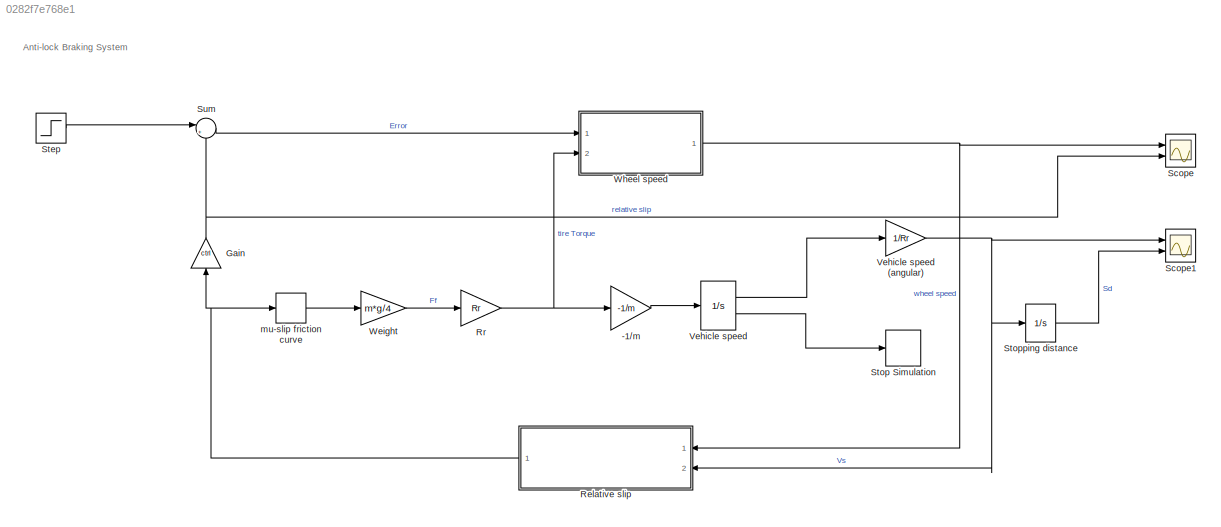
MODEL slx_0282f7e768e1
KIND model
CONFIG AbsTol = auto
CONFIG EnableMultiTasking = off
CONFIG FixedStep = auto
CONFIG MaxStep = auto
CONFIG MinStep = auto
CONFIG PostLoadFcn = % Load initialization data\n\n
CONFIG RelTol = 1e-3
CONFIG SampleTimeConstraint = Unconstrained
CONFIG Solver = ode45
CONFIG SolverName = ode45
CONFIG StartTime = 0.0
CONFIG StopTime = 25.0
WORKSPACE source: mxarray member
WORKSPACE I = 5
WORKSPACE Kf = 1
WORKSPACE PBmax = 1500
WORKSPACE Rr = 1.25
WORKSPACE TB = 0.01
WORKSPACE ctrl = 1
WORKSPACE g = 32.18
WORKSPACE m = 50
WORKSPACE mu = [0 0.4 0.8 0.97 1 0.98 0.96 0.94 0.92 0.9 0.88 0.855 ... (21 elements, 1x21)]
WORKSPACE slip = [0 0.05 0.1 0.15 0.2 0.25 0.3 0.35 0.4 0.45 0.5 0.55 ... (21 elements, 1x21)]
WORKSPACE v0 = 88
BLOCK [Gain] -1//m
  Gain = -1/m
  OutDataTypeStr = Inherit: Same as input
  ParamDataTypeStr = Inherit: Same as input
  SaturateOnIntegerOverflow = on
BLOCK [Gain] Gain
  Gain = ctrl
  NameLocation = right
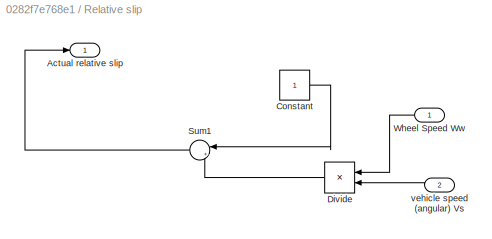
BLOCK [SubSystem] Relative slip
  Ports = [2, 1]
  RequestExecContextInheritance = off
BLOCK [Outport] Relative slip/Actual relative slip
  NameLocation = right
BLOCK [Constant] Relative slip/Constant
BLOCK [Product] Relative slip/Divide
  Inputs = */
  NameLocation = top
  Ports = [2, 1]
BLOCK [Sum] Relative slip/Sum1
  Inputs = |+-
  NameLocation = top
  Ports = [2, 1]
BLOCK [Inport] Relative slip/Wheel Speed Ww
BLOCK [Inport] Relative slip/vehicle speed (angular) Vs
  Port = 2
BLOCK [Gain] Rr
  Gain = Rr
  OutDataTypeStr = Inherit: Same as input
  ParamDataTypeStr = Inherit: Same as input
  SaturateOnIntegerOverflow = on
BLOCK [Scope] Scope
  Floating = off
  NumInputPorts = 2
  Ports = [2]
  ScopeSpecificationString = Simulink.scopes.TimeScopeBlockCfg('CurrentConfiguration', extmgr.ConfigurationSet(extmgr.Configuration('Core','General UI',true),extmgr.Configuration('Core','Source UI',true),extmgr.Configuration('Sources','WiredSimulink',true),extmgr.Configuration('Visuals','Time Domain',true,'SerializedDisplays',{struct('MinYLimReal','-8.8','MaxYLimReal','79.2','YLabelReal','','MinYLimMag','0.00000','MaxYLimMag'...<+2057ch>
BLOCK [Scope] Scope1
  Floating = off
  NumInputPorts = 2
  Ports = [2]
  ScopeSpecificationString = Simulink.scopes.TimeScopeBlockCfg('CurrentConfiguration', extmgr.ConfigurationSet(extmgr.Configuration('Core','General UI',true),extmgr.Configuration('Core','Source UI',true),extmgr.Configuration('Sources','WiredSimulink',true,'DataLoggingVariableName','ScopeData1'),extmgr.Configuration('Visuals','Time Domain',true,'SerializedDisplays',{struct('MinYLimReal','-8.8','MaxYLimReal','79.2','YLabelReal'...<+2088ch>
BLOCK [Step] Step
  After = 0.2
  SampleTime = 0
BLOCK [Stop] Stop Simulation
BLOCK [Integrator] Stopping distance
  LowerSaturationLimit = 0
  Ports = [1, 1]
  UpperSaturationLimit = 1000
BLOCK [Sum] Sum
  Inputs = |+-
  Ports = [2, 1]
BLOCK [Integrator] Vehicle speed
  InitialCondition = v0
  LimitOutput = on
  LowerSaturationLimit = 0
  Ports = [1, 2]
  ShowSaturationPort = on
  UpperSaturationLimit = 1000
BLOCK [Gain] Vehicle speed (angular)
  Gain = 1/Rr
  OutDataTypeStr = Inherit: Same as input
  ParamDataTypeStr = Inherit: Same as input
  SaturateOnIntegerOverflow = on
BLOCK [Gain] Weight
  Gain = m*g/4
  OutDataTypeStr = Inherit: Same as input
  ParamDataTypeStr = Inherit: Same as input
  SaturateOnIntegerOverflow = on
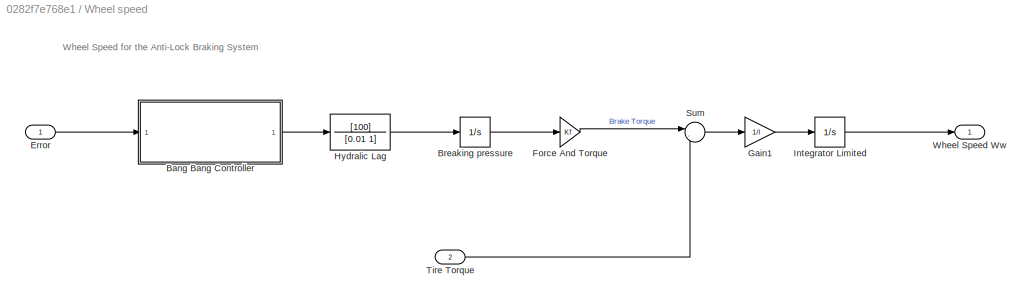
BLOCK [SubSystem] Wheel speed
  Ports = [2, 1]
  RequestExecContextInheritance = off
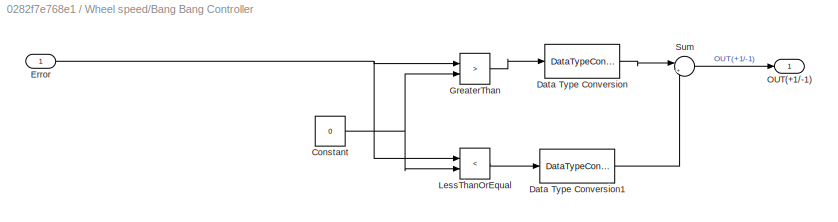
BLOCK [SubSystem] Wheel speed/Bang Bang Controller
  Ports = [1, 1]
  RequestExecContextInheritance = off
BLOCK [Constant] Wheel speed/Bang Bang Controller/Constant
  Value = 0
BLOCK [DataTypeConversion] Wheel speed/Bang Bang Controller/Data Type Conversion
  OutDataTypeStr = double
  SaturateOnIntegerOverflow = off
BLOCK [DataTypeConversion] Wheel speed/Bang Bang Controller/Data Type Conversion1
  OutDataTypeStr = double
  SaturateOnIntegerOverflow = off
BLOCK [Inport] Wheel speed/Bang Bang Controller/Error
BLOCK [RelationalOperator] Wheel speed/Bang Bang Controller/GreaterThan
  InputSameDT = off
  Operator = >
  OutDataTypeStr = boolean
  Ports = [2, 1]
  RndMeth = Simplest
BLOCK [RelationalOperator] Wheel speed/Bang Bang Controller/LessThanOrEqual
  InputSameDT = off
  Operator = <
  OutDataTypeStr = boolean
  Ports = [2, 1]
  RndMeth = Simplest
BLOCK [Outport] Wheel speed/Bang Bang Controller/OUT(+1//-1)
BLOCK [Sum] Wheel speed/Bang Bang Controller/Sum
  Inputs = |+-
  Ports = [2, 1]
BLOCK [Integrator] Wheel speed/Breaking pressure
  LimitOutput = on
  LowerSaturationLimit = 0
  Ports = [1, 1]
  UpperSaturationLimit = PBmax
BLOCK [Inport] Wheel speed/Error
BLOCK [Gain] Wheel speed/Force And Torque
  Gain = Kf
BLOCK [Gain] Wheel speed/Gain1
  Gain = 1/I
BLOCK [TransferFcn] Wheel speed/Hydralic Lag
  Denominator = [0.01 1]
  Numerator = [100]
BLOCK [Integrator] Wheel speed/Integrator Limited
  InitialCondition = v0/Rr
  LimitOutput = on
  LowerSaturationLimit = 0
  Ports = [1, 1]
  UpperSaturationLimit = 1000
BLOCK [Sum] Wheel speed/Sum
  Inputs = |-+
  Ports = [2, 1]
BLOCK [Inport] Wheel speed/Tire Torque
  Port = 2
BLOCK [Outport] Wheel speed/Wheel Speed Ww
BLOCK [Lookup_n-D] mu-slip friction curve
  BreakpointsForDimension1 = slip
  NumberOfTableDimensions = 1
  Ports = [1, 1]
  SaturateOnIntegerOverflow = on
  Table = mu
ANNOTATION (root): Anti-lock Braking System
ANNOTATION Wheel speed: Wheel Speed for the Anti-Lock Braking System
LINE -1//m:1 -> Vehicle speed:1
NET Gain:1 -> Scope:2, Sum:2
LINE Relative slip/Constant:1 -> Relative slip/Sum1:1
LINE Relative slip/Divide:1 -> Relative slip/Sum1:2
LINE Relative slip/Sum1:1 -> Relative slip/Actual relative slip:1
LINE Relative slip/Wheel Speed Ww:1 -> Relative slip/Divide:1
LINE Relative slip/vehicle speed (angular) Vs:1 -> Relative slip/Divide:2
NET Relative slip:1 -> Gain:1, mu-slip friction curve:1
NET Rr:1 -> -1//m:1, Wheel speed:2
LINE Step:1 -> Sum:1
LINE Stopping distance:1 -> Scope1:2
LINE Sum:1 -> Wheel speed:1
NET Vehicle speed (angular):1 -> Relative slip:2, Scope1:1, Stopping distance:1
LINE Vehicle speed:1 -> Vehicle speed (angular):1
LINE Vehicle speed:2 -> Stop Simulation:1
LINE Weight:1 -> Rr:1
NET Wheel speed/Bang Bang Controller/Constant:1 -> Wheel speed/Bang Bang Controller/GreaterThan:2, Wheel speed/Bang Bang Controller/LessThanOrEqual:2
LINE Wheel speed/Bang Bang Controller/Data Type Conversion1:1 -> Wheel speed/Bang Bang Controller/Sum:2
LINE Wheel speed/Bang Bang Controller/Data Type Conversion:1 -> Wheel speed/Bang Bang Controller/Sum:1
NET Wheel speed/Bang Bang Controller/Error:1 -> Wheel speed/Bang Bang Controller/GreaterThan:1, Wheel speed/Bang Bang Controller/LessThanOrEqual:1
LINE Wheel speed/Bang Bang Controller/GreaterThan:1 -> Wheel speed/Bang Bang Controller/Data Type Conversion:1
LINE Wheel speed/Bang Bang Controller/LessThanOrEqual:1 -> Wheel speed/Bang Bang Controller/Data Type Conversion1:1
LINE Wheel speed/Bang Bang Controller/Sum:1 -> Wheel speed/Bang Bang Controller/OUT(+1//-1):1
LINE Wheel speed/Bang Bang Controller:1 -> Wheel speed/Hydralic Lag:1
LINE Wheel speed/Breaking pressure:1 -> Wheel speed/Force And Torque:1
LINE Wheel speed/Error:1 -> Wheel speed/Bang Bang Controller:1
LINE Wheel speed/Force And Torque:1 -> Wheel speed/Sum:1
LINE Wheel speed/Gain1:1 -> Wheel speed/Integrator Limited:1
LINE Wheel speed/Hydralic Lag:1 -> Wheel speed/Breaking pressure:1
LINE Wheel speed/Integrator Limited:1 -> Wheel speed/Wheel Speed Ww:1
LINE Wheel speed/Sum:1 -> Wheel speed/Gain1:1
LINE Wheel speed/Tire Torque:1 -> Wheel speed/Sum:2
NET Wheel speed:1 -> Relative slip:1, Scope:1
LINE mu-slip friction curve:1 -> Weight:1
note: NET lines group one-source signal fan-out (src -> all destinations, sorted); 1:1 wires keep LINE
